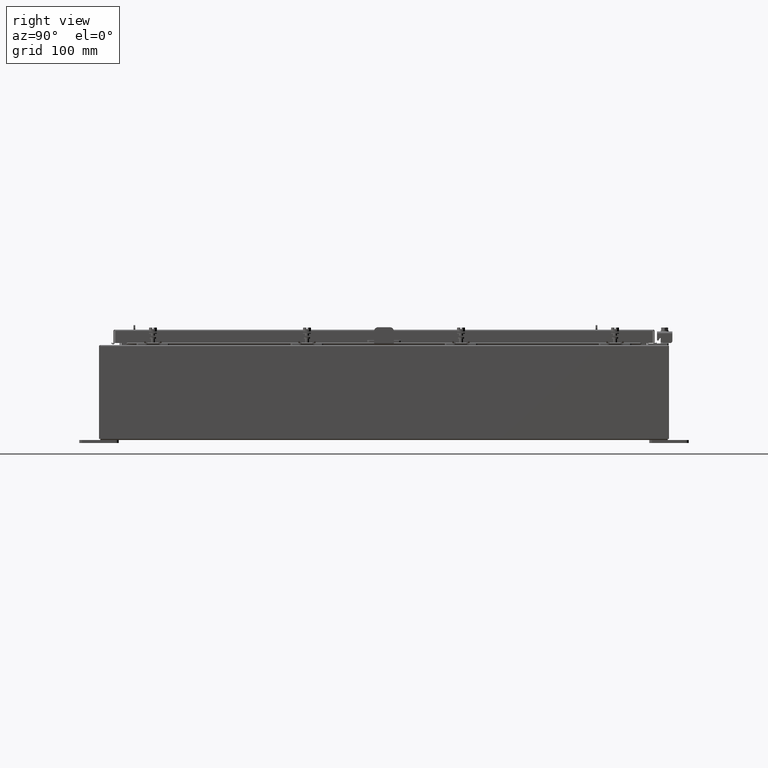
[diagram: clean part render]
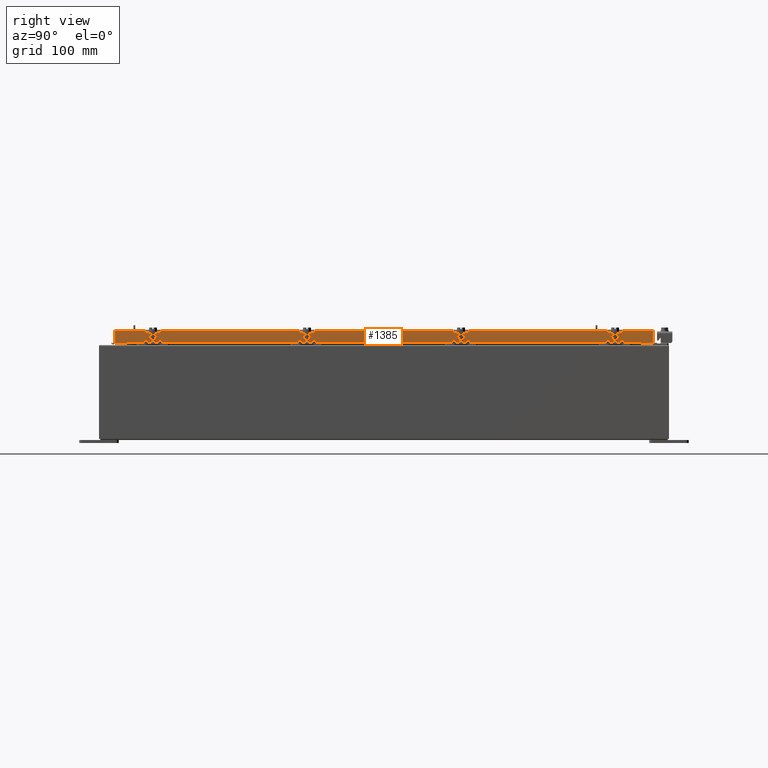
[diagram: same view with one face highlighted and labeled with its STEP entity id]
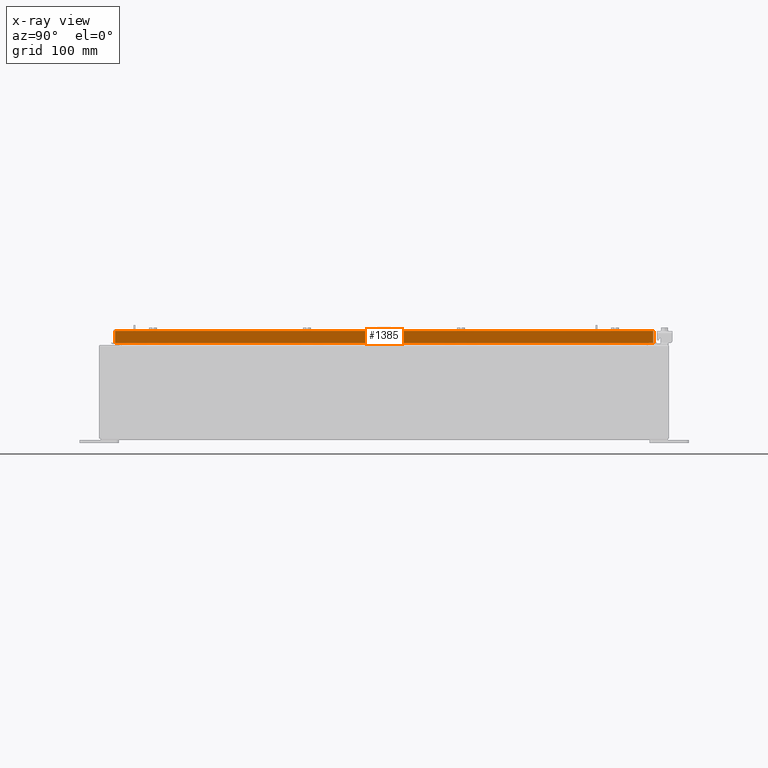
[diagram: x-ray of the same camera — body ghosted, the highlighted face saturated]
A machine part, right view. The second image highlights one B-rep face of the part: STEP entity #1385.
The next image is the same camera in x-ray: the body ghosted, the highlighted face saturated — about 0% of this face is hidden behind the body in this view.
In plain terms, the highlighted planar face has unit normal (1, 0, 0).
Its self-contained STEP definition (entity closure, byte-faithful):
#181 = VERTEX_POINT ( 'NONE', #5239 ) ;
#592 = AXIS2_PLACEMENT_3D ( 'NONE', #15556, #1177, #19167 ) ;
#691 = CARTESIAN_POINT ( 'NONE',  ( 11.07799999999999200, 16.25515786437627200, -0.8500000000000020900 ) ) ;
#897 = VECTOR ( 'NONE', #18233, 39.37007874015748100 ) ;
#1177 = DIRECTION ( 'NONE',  ( 1.000000000000000000, 0.0000000000000000000, 2.818880942772360100E-015 ) ) ;
#1385 = ADVANCED_FACE ( 'NONE', ( #17069 ), #17355, .T. ) ;
#2416 = DIRECTION ( 'NONE',  ( 0.0000000000000000000, -1.000000000000000000, 0.0000000000000000000 ) ) ;
#2478 = ORIENTED_EDGE ( 'NONE', *, *, #5222, .T. ) ;
#3103 = EDGE_CURVE ( 'NONE', #181, #20592, #18323, .T. ) ;
#4023 = EDGE_LOOP ( 'NONE', ( #15460, #12265, #18953, #13649, #5277, #2478 ) ) ;
#4234 = DIRECTION ( 'NONE',  ( -2.818880942772360500E-015, -6.982962677686269100E-015, 1.000000000000000000 ) ) ;
#5222 = EDGE_CURVE ( 'NONE', #13555, #5226, #6157, .T. ) ;
#5226 = VERTEX_POINT ( 'NONE', #6203 ) ;
#5239 = CARTESIAN_POINT ( 'NONE',  ( 11.07799999999999200, -16.25515786437626500, -0.8500000000000020900 ) ) ;
#5277 = ORIENTED_EDGE ( 'NONE', *, *, #15604, .T. ) ;
#5709 = LINE ( 'NONE', #7492, #897 ) ;
#6157 = LINE ( 'NONE', #11531, #19921 ) ;
#6199 = VECTOR ( 'NONE', #12718, 39.37007874015748100 ) ;
#6203 = CARTESIAN_POINT ( 'NONE',  ( 11.07799999999999800, -17.00515786437626900, -0.08770000000000224800 ) ) ;
#6587 = CARTESIAN_POINT ( 'NONE',  ( 11.07799999999999900, -17.00515786437626500, -0.8499999999999996400 ) ) ;
#6728 = EDGE_CURVE ( 'NONE', #17327, #181, #20524, .T. ) ;
#7492 = CARTESIAN_POINT ( 'NONE',  ( 11.07799999999999800, 17.00515786437626900, 1.502347594351463900E-013 ) ) ;
#7644 = EDGE_CURVE ( 'NONE', #18433, #17327, #18525, .T. ) ;
#10297 = DIRECTION ( 'NONE',  ( 0.0000000000000000000, -1.000000000000000000, 0.0000000000000000000 ) ) ;
#10876 = CARTESIAN_POINT ( 'NONE',  ( 11.07799999999999200, 16.25515786437627200, -0.8500000000000020900 ) ) ;
#11531 = CARTESIAN_POINT ( 'NONE',  ( 11.07799999999999800, 5.606249421889436000E-018, -0.08770000000000115200 ) ) ;
#12265 = ORIENTED_EDGE ( 'NONE', *, *, #3103, .F. ) ;
#12718 = DIRECTION ( 'NONE',  ( 0.0000000000000000000, -1.000000000000000000, 0.0000000000000000000 ) ) ;
#13360 = DIRECTION ( 'NONE',  ( 1.801978295984813200E-031, -1.000000000000000000, -6.392530697705073700E-017 ) ) ;
#13555 = VERTEX_POINT ( 'NONE', #14491 ) ;
#13649 = ORIENTED_EDGE ( 'NONE', *, *, #7644, .F. ) ;
#14491 = CARTESIAN_POINT ( 'NONE',  ( 11.07799999999999800, 17.00515786437626500, -0.08770000000000115200 ) ) ;
#14978 = CARTESIAN_POINT ( 'NONE',  ( 11.07799999999999900, -17.09400000000000100, -0.8499999999999996400 ) ) ;
#14997 = CARTESIAN_POINT ( 'NONE',  ( 11.07799999999999800, -17.00515786437626900, -0.07469999999999978000 ) ) ;
#15460 = ORIENTED_EDGE ( 'NONE', *, *, #19211, .F. ) ;
#15556 = CARTESIAN_POINT ( 'NONE',  ( 11.07799999999999800, 0.0000000000000000000, 3.148837674004378400E-014 ) ) ;
#15604 = EDGE_CURVE ( 'NONE', #18433, #13555, #5709, .T. ) ;
#16217 = CARTESIAN_POINT ( 'NONE',  ( 11.07799999999999900, 17.00515786437627600, -0.8499999999999996400 ) ) ;
#17069 = FACE_OUTER_BOUND ( 'NONE', #4023, .T. ) ;
#17327 = VERTEX_POINT ( 'NONE', #691 ) ;
#17355 = PLANE ( 'NONE',  #592 ) ;
#17773 = VECTOR ( 'NONE', #10297, 39.37007874015748100 ) ;
#17950 = LINE ( 'NONE', #14997, #22174 ) ;
#18233 = DIRECTION ( 'NONE',  ( -2.818880942772360500E-015, -6.982962677686269100E-015, 1.000000000000000000 ) ) ;
#18323 = LINE ( 'NONE', #19338, #17773 ) ;
#18433 = VERTEX_POINT ( 'NONE', #16217 ) ;
#18525 = LINE ( 'NONE', #14978, #22738 ) ;
#18953 = ORIENTED_EDGE ( 'NONE', *, *, #6728, .F. ) ;
#19167 = DIRECTION ( 'NONE',  ( 2.818880942772360100E-015, 0.0000000000000000000, -1.000000000000000000 ) ) ;
#19211 = EDGE_CURVE ( 'NONE', #20592, #5226, #17950, .T. ) ;
#19338 = CARTESIAN_POINT ( 'NONE',  ( 11.07799999999999900, -17.09400000000000100, -0.8499999999999996400 ) ) ;
#19921 = VECTOR ( 'NONE', #13360, 39.37007874015748100 ) ;
#20524 = LINE ( 'NONE', #10876, #6199 ) ;
#20592 = VERTEX_POINT ( 'NONE', #6587 ) ;
#22174 = VECTOR ( 'NONE', #4234, 39.37007874015748100 ) ;
#22738 = VECTOR ( 'NONE', #2416, 39.37007874015748100 ) ;